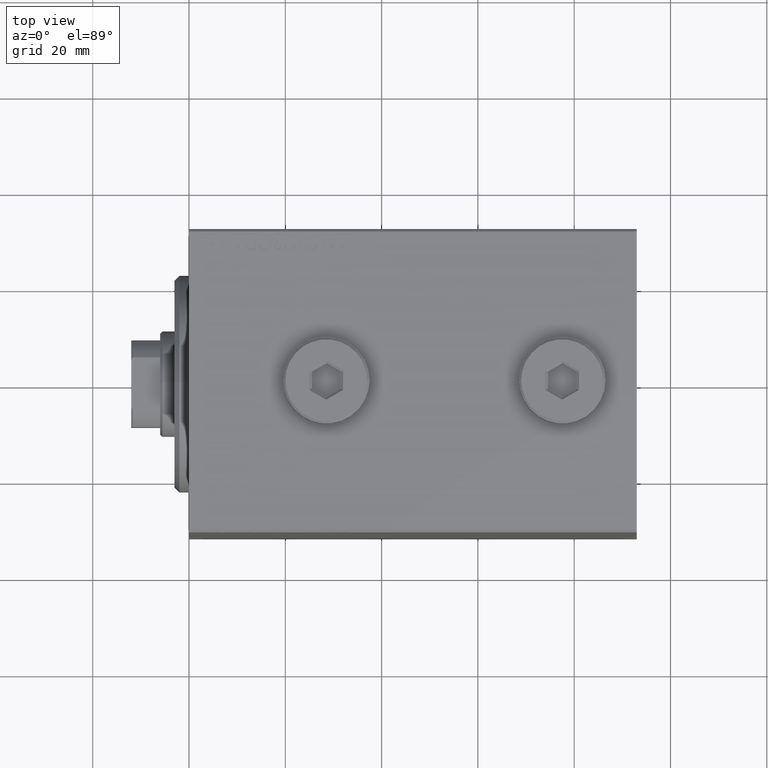
[diagram: clean part render]
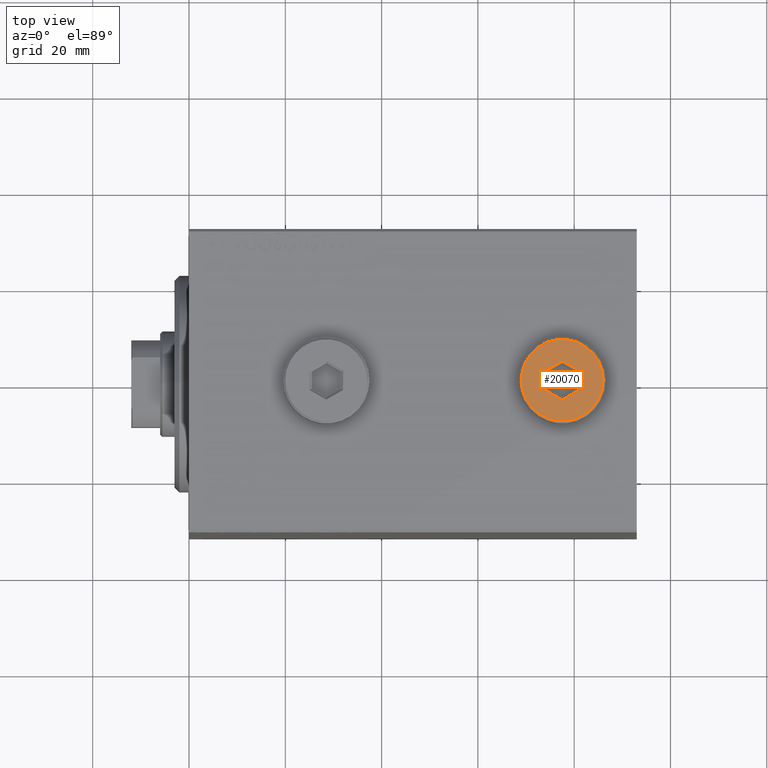
[diagram: same view with one face highlighted and labeled with its STEP entity id]
A machine part, top view. The second image highlights one B-rep face of the part: STEP entity #20070.
In plain terms, the highlighted planar face has unit normal (0, 0, 1).
Its self-contained STEP definition (entity closure, byte-faithful):
#2952 = PLANE ( 'NONE',  #42850 ) ;
#3815 = VERTEX_POINT ( 'NONE', #19246 ) ;
#5873 = ORIENTED_EDGE ( 'NONE', *, *, #21270, .T. ) ;
#7593 = CARTESIAN_POINT ( 'NONE',  ( -0.2500000000000027756, 3.897114317029978459, 5.000000000000000000 ) ) ;
#8086 = LINE ( 'NONE', #11774, #14589 ) ;
#9511 = LINE ( 'NONE', #44756, #16638 ) ;
#10070 = AXIS2_PLACEMENT_3D ( 'NONE', #21953, #32760, #11802 ) ;
#11774 = CARTESIAN_POINT ( 'NONE',  ( 3.250000000000003109, 2.165063509461103042, 5.000000000000000000 ) ) ;
#11802 = DIRECTION ( 'NONE',  ( 1.000000000000000000, 0.000000000000000000, 0.000000000000000000 ) ) ;
#12077 = CARTESIAN_POINT ( 'NONE',  ( 0.000000000000000000, 0.000000000000000000, 5.000000000000000000 ) ) ;
#12375 = CARTESIAN_POINT ( 'NONE',  ( 3.500000000000006661, -2.020725942163693833, 5.000000000000000000 ) ) ;
#12654 = VERTEX_POINT ( 'NONE', #19887 ) ;
#14569 = ORIENTED_EDGE ( 'NONE', *, *, #30902, .T. ) ;
#14589 = VECTOR ( 'NONE', #29518, 1000.000000000000000 ) ;
#15393 = LINE ( 'NONE', #29455, #23029 ) ;
#15521 = DIRECTION ( 'NONE',  ( 0.000000000000000000, 0.000000000000000000, 1.000000000000000000 ) ) ;
#16382 = VERTEX_POINT ( 'NONE', #33991 ) ;
#16463 = ORIENTED_EDGE ( 'NONE', *, *, #22809, .T. ) ;
#16575 = LINE ( 'NONE', #30426, #35103 ) ;
#16619 = EDGE_LOOP ( 'NONE', ( #18303, #30779 ) ) ;
#16638 = VECTOR ( 'NONE', #23567, 1000.000000000000000 ) ;
#17535 = CARTESIAN_POINT ( 'NONE',  ( 0.2500000000000027756, -3.897114317029979347, 5.000000000000000000 ) ) ;
#18303 = ORIENTED_EDGE ( 'NONE', *, *, #44983, .T. ) ;
#19246 = CARTESIAN_POINT ( 'NONE',  ( 1.590596867181068292E-15, 4.041451884327386779, 5.000000000000000000 ) ) ;
#19887 = CARTESIAN_POINT ( 'NONE',  ( -1.006139216460143630E-15, -4.041451884327387667, 5.000000000000000000 ) ) ;
#19990 = CIRCLE ( 'NONE', #22243, 8.500000000000010658 ) ;
#20070 = ADVANCED_FACE ( 'NONE', ( #20225, #34505 ), #2952, .T. ) ;
#20225 = FACE_BOUND ( 'NONE', #41544, .T. ) ;
#21169 = VERTEX_POINT ( 'NONE', #37058 ) ;
#21267 = ORIENTED_EDGE ( 'NONE', *, *, #39908, .T. ) ;
#21270 = EDGE_CURVE ( 'NONE', #38662, #27929, #15393, .T. ) ;
#21393 = ORIENTED_EDGE ( 'NONE', *, *, #30766, .T. ) ;
#21953 = CARTESIAN_POINT ( 'NONE',  ( 0.000000000000000000, 0.000000000000000000, 5.000000000000000000 ) ) ;
#22243 = AXIS2_PLACEMENT_3D ( 'NONE', #12077, #15521, #32801 ) ;
#22768 = VERTEX_POINT ( 'NONE', #30481 ) ;
#22809 = EDGE_CURVE ( 'NONE', #27907, #12654, #32049, .T. ) ;
#23029 = VECTOR ( 'NONE', #27346, 1000.000000000000000 ) ;
#23475 = DIRECTION ( 'NONE',  ( 0.000000000000000000, 0.000000000000000000, 1.000000000000000000 ) ) ;
#23567 = DIRECTION ( 'NONE',  ( 0.000000000000000000, -1.000000000000000000, 0.000000000000000000 ) ) ;
#24918 = DIRECTION ( 'NONE',  ( -0.8660254037844387076, -0.4999999999999998890, 0.000000000000000000 ) ) ;
#25796 = CARTESIAN_POINT ( 'NONE',  ( -3.500000000000006661, -2.020725942163694278, 5.000000000000000000 ) ) ;
#27042 = ORIENTED_EDGE ( 'NONE', *, *, #32712, .T. ) ;
#27315 = CARTESIAN_POINT ( 'NONE',  ( -3.500000000000006661, 2.020725942163692945, 5.000000000000000000 ) ) ;
#27346 = DIRECTION ( 'NONE',  ( 0.000000000000000000, 1.000000000000000000, 0.000000000000000000 ) ) ;
#27411 = DIRECTION ( 'NONE',  ( -0.8660254037844385966, 0.4999999999999999445, 0.000000000000000000 ) ) ;
#27907 = VERTEX_POINT ( 'NONE', #12375 ) ;
#27929 = VERTEX_POINT ( 'NONE', #27315 ) ;
#29455 = CARTESIAN_POINT ( 'NONE',  ( -3.500000000000006661, 1.732050807568878081, 5.000000000000000000 ) ) ;
#29518 = DIRECTION ( 'NONE',  ( 0.8660254037844387076, -0.4999999999999998890, 0.000000000000000000 ) ) ;
#29637 = DIRECTION ( 'NONE',  ( 0.8660254037844387076, 0.4999999999999998335, 0.000000000000000000 ) ) ;
#30426 = CARTESIAN_POINT ( 'NONE',  ( -3.250000000000003109, -2.165063509461102598, 5.000000000000000000 ) ) ;
#30481 = CARTESIAN_POINT ( 'NONE',  ( 8.500000000000010658, 1.071565949253934716E-15, 5.000000000000000000 ) ) ;
#30766 = EDGE_CURVE ( 'NONE', #16382, #27907, #9511, .T. ) ;
#30779 = ORIENTED_EDGE ( 'NONE', *, *, #34532, .T. ) ;
#30902 = EDGE_CURVE ( 'NONE', #12654, #38662, #16575, .T. ) ;
#31045 = CARTESIAN_POINT ( 'NONE',  ( 0.000000000000000000, 0.000000000000000000, 5.000000000000000000 ) ) ;
#32049 = LINE ( 'NONE', #17535, #37103 ) ;
#32712 = EDGE_CURVE ( 'NONE', #27929, #3815, #38933, .T. ) ;
#32760 = DIRECTION ( 'NONE',  ( 0.000000000000000000, 0.000000000000000000, 1.000000000000000000 ) ) ;
#32801 = DIRECTION ( 'NONE',  ( 1.000000000000000000, 0.000000000000000000, 0.000000000000000000 ) ) ;
#33591 = CIRCLE ( 'NONE', #10070, 8.500000000000010658 ) ;
#33991 = CARTESIAN_POINT ( 'NONE',  ( 3.500000000000006661, 2.020725942163694722, 5.000000000000000000 ) ) ;
#34505 = FACE_OUTER_BOUND ( 'NONE', #16619, .T. ) ;
#34532 = EDGE_CURVE ( 'NONE', #22768, #21169, #33591, .T. ) ;
#35103 = VECTOR ( 'NONE', #27411, 1000.000000000000114 ) ;
#37058 = CARTESIAN_POINT ( 'NONE',  ( -8.500000000000010658, 0.000000000000000000, 5.000000000000000000 ) ) ;
#37103 = VECTOR ( 'NONE', #24918, 1000.000000000000000 ) ;
#37266 = VECTOR ( 'NONE', #29637, 1000.000000000000000 ) ;
#38662 = VERTEX_POINT ( 'NONE', #25796 ) ;
#38933 = LINE ( 'NONE', #7593, #37266 ) ;
#39908 = EDGE_CURVE ( 'NONE', #3815, #16382, #8086, .T. ) ;
#41544 = EDGE_LOOP ( 'NONE', ( #5873, #27042, #21267, #21393, #16463, #14569 ) ) ;
#42850 = AXIS2_PLACEMENT_3D ( 'NONE', #31045, #23475, #45110 ) ;
#44756 = CARTESIAN_POINT ( 'NONE',  ( 3.500000000000006661, -1.732050807568878303, 5.000000000000000000 ) ) ;
#44983 = EDGE_CURVE ( 'NONE', #21169, #22768, #19990, .T. ) ;
#45110 = DIRECTION ( 'NONE',  ( 1.000000000000000000, 0.000000000000000000, -0.000000000000000000 ) ) ;